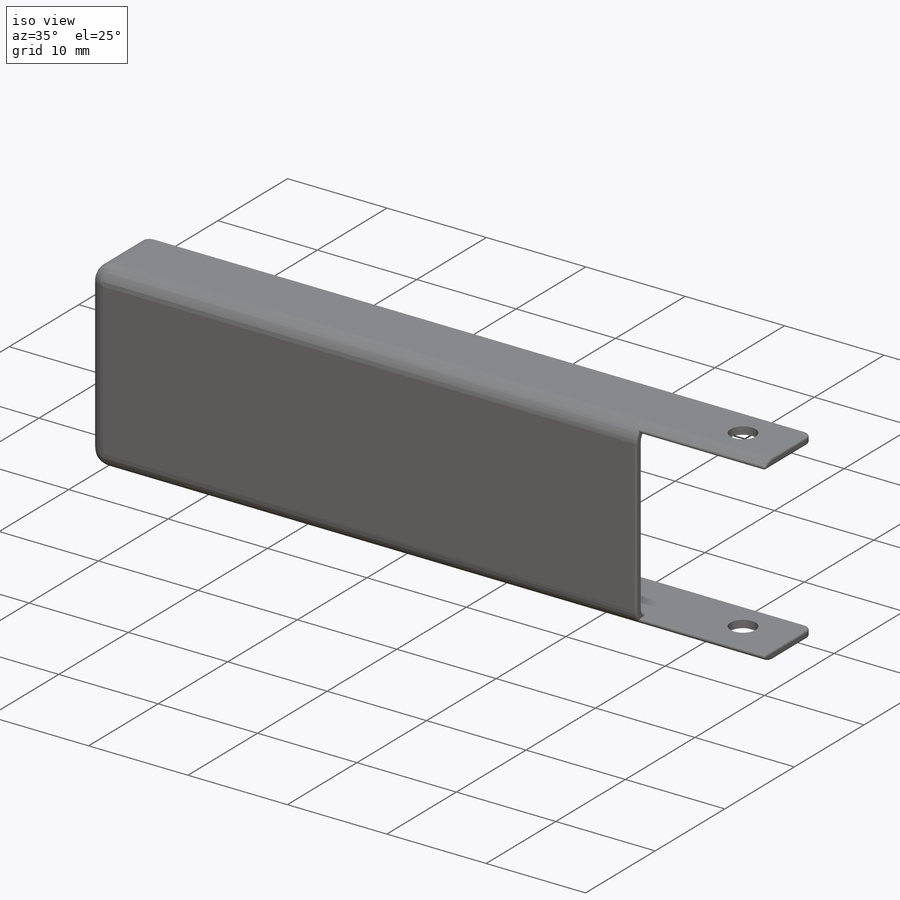
[diagram: iso view]
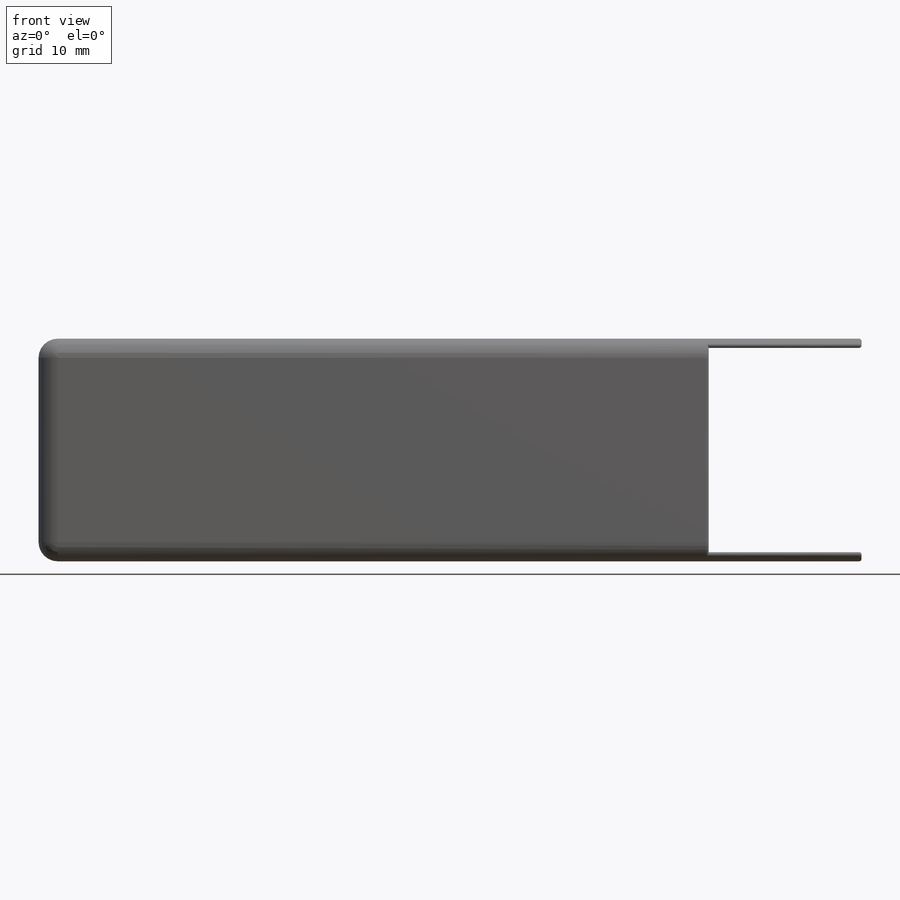
[diagram: front view]
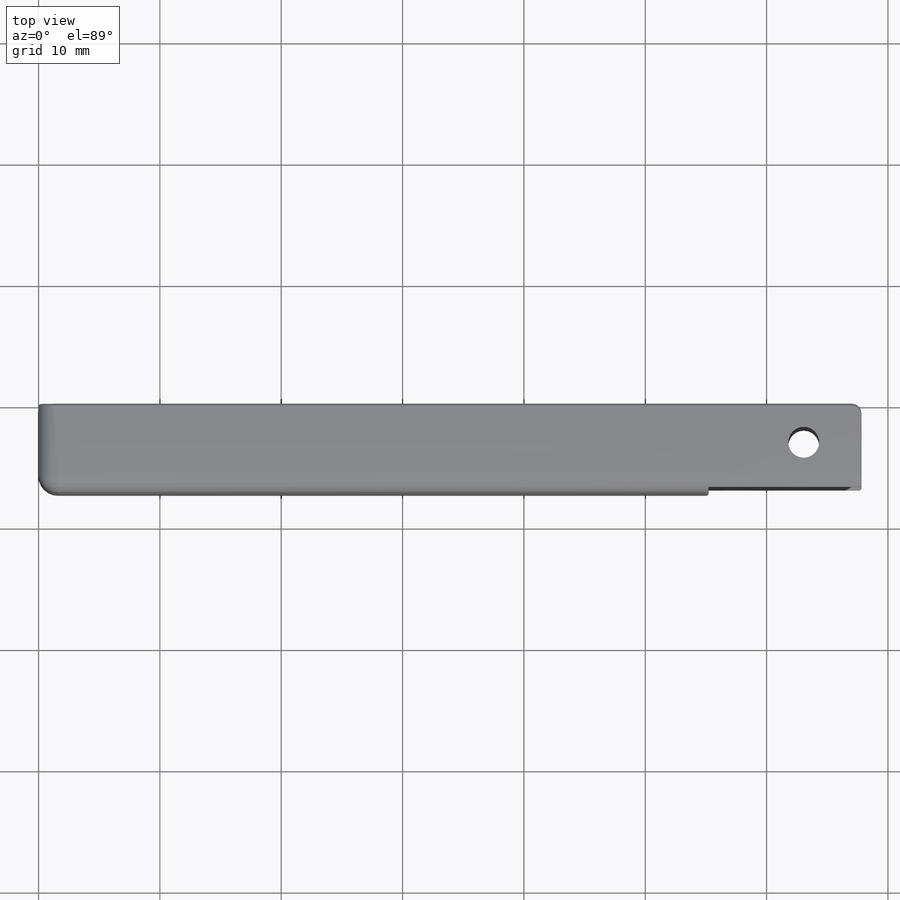
[diagram: top view]
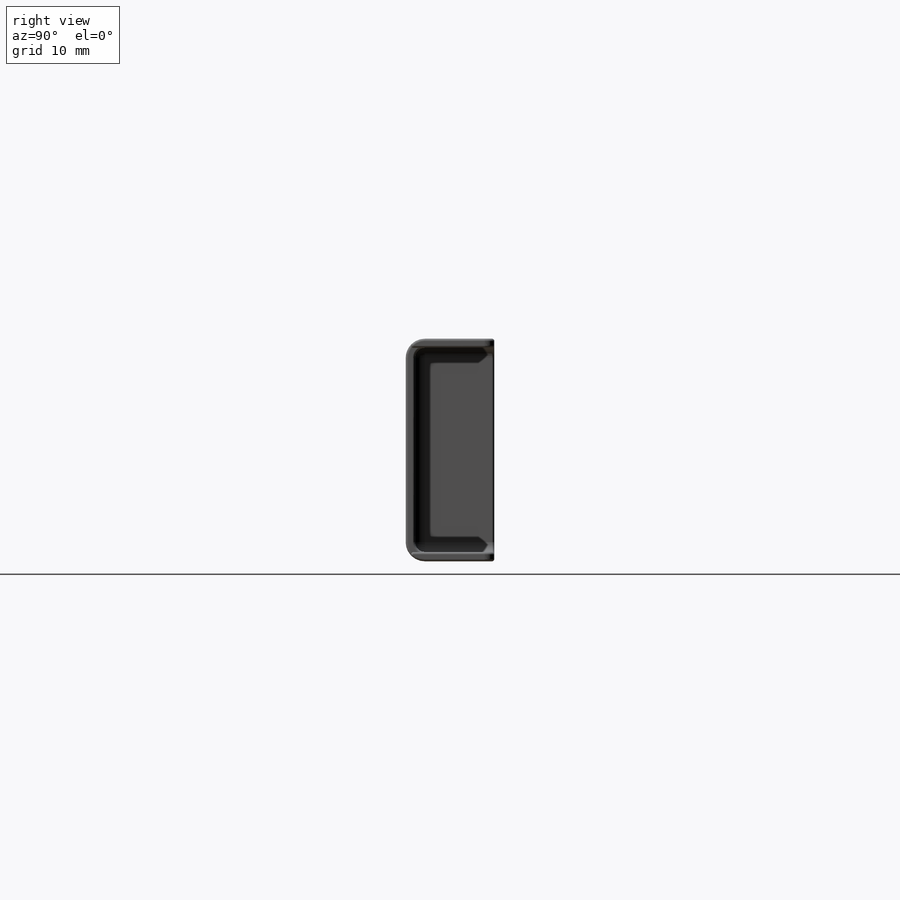
[diagram: right view]
SOLIDWORKS PART (.sldprt)
format: sldprt  version: not decoded by parser v0  size: 300,544 bytes
history: native  units: mm
features: sketch x3, fillet x3, cut_extrude x2, material x1, extrude x1, shell x1 (+16 scaffold rows collapsed)
feature tree (27):
  scaffold x16  (default folders/planes/origin — collapsed)
  material  "6061-T6 (SS)"
  sketch  "Sketch1"  dims[D1=67.818mm D2=18.3515mm]
  extrude  "Extrude1"  Depth=7.3025mm
  fillet  "Fillet1"  Radius=1.5875mm
  shell  "Shell1"  Thickness=0.762mm
  sketch  "Sketch2"  dims[D1=55.2196mm]
  cut_extrude  "Extrude2"  [1 undecoded]
  sketch  "Sketch3"  dims[D1=2.54mm D2=4.7625mm D3=3.175mm]
  cut_extrude  "Extrude3"  [1 undecoded]
  fillet  "Fillet2"  Radius=0.79375mm
  fillet  "Fillet3"  Radius=0.198437mm
decode coverage: 8 of 10 modeling features carry decoded parameters
note: 2 parameter values undecoded
note: suppression state not decoded; provenance and decode notes live in map.json
